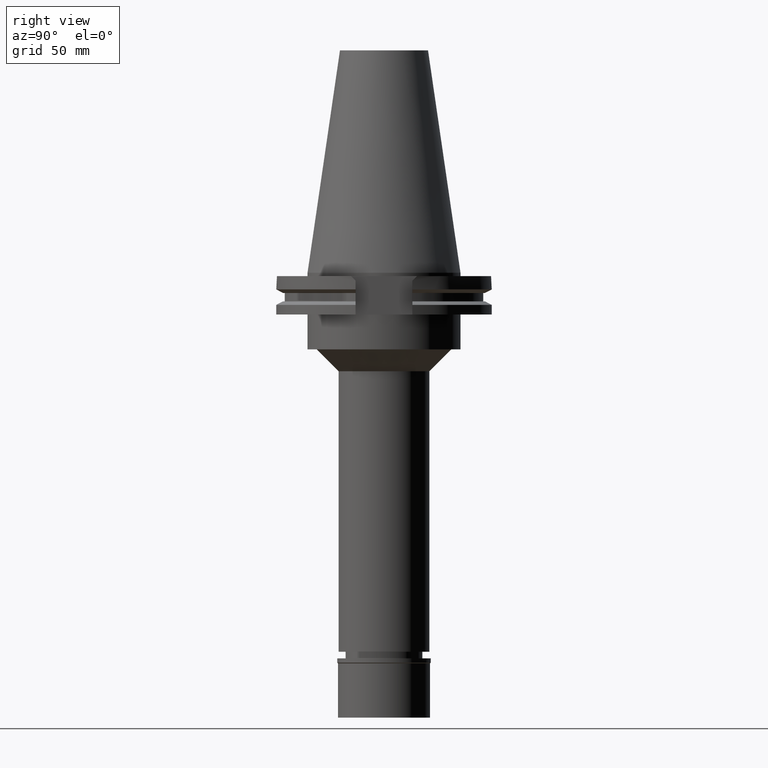
[diagram: clean part render]
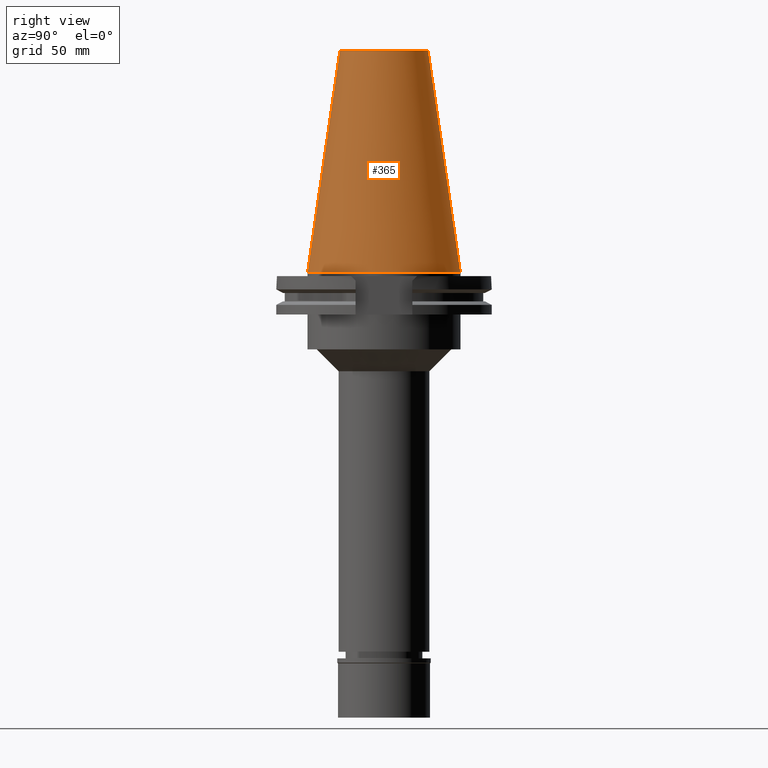
[diagram: same view with one face highlighted and labeled with its STEP entity id]
A machine part, right view. The second image highlights one B-rep face of the part: STEP entity #365.
In plain terms, the highlighted conical surface has half-angle 8.297 deg.
Its self-contained STEP definition (entity closure, byte-faithful):
#14 = CARTESIAN_POINT ( 'NONE',  ( 0.0000000000000000000, 20.10832422387000307, 101.5999999999999943 ) ) ;
#145 = CARTESIAN_POINT ( 'NONE',  ( 0.0000000000000000000, 1.846767373113999857E-14, 50.79999999999999716 ) ) ;
#223 = CARTESIAN_POINT ( 'NONE',  ( 0.0000000000000000000, 1.846767373113999857E-14, 101.5999999999999943 ) ) ;
#279 = EDGE_CURVE ( 'NONE', #2280, #2033, #2175, .T. ) ;
#329 = VECTOR ( 'NONE', #1509, 1000.000000000000114 ) ;
#365 = ADVANCED_FACE ( 'NONE', ( #2960 ), #676, .T. ) ;
#493 = AXIS2_PLACEMENT_3D ( 'NONE', #223, #2522, #2735 ) ;
#589 = VERTEX_POINT ( 'NONE', #1286 ) ;
#642 = DIRECTION ( 'NONE',  ( 0.0000000000000000000, -0.1443069799456937474, -0.9895329683941577192 ) ) ;
#676 = CONICAL_SURFACE ( 'NONE', #1637, 27.51666211194000056, 0.1448125860318199565 ) ;
#1168 = AXIS2_PLACEMENT_3D ( 'NONE', #2330, #2297, #2569 ) ;
#1286 = CARTESIAN_POINT ( 'NONE',  ( 0.0000000000000000000, 34.92499999999999716, 4.689582056016999490E-13 ) ) ;
#1344 = VERTEX_POINT ( 'NONE', #1413 ) ;
#1413 = CARTESIAN_POINT ( 'NONE',  ( 0.0000000000000000000, 20.10832422388000040, 101.5999999999999943 ) ) ;
#1475 = LINE ( 'NONE', #14, #329 ) ;
#1484 = VECTOR ( 'NONE', #642, 1000.000000000000114 ) ;
#1509 = DIRECTION ( 'NONE',  ( 0.0000000000000000000, 0.1443069799456937474, -0.9895329683941577192 ) ) ;
#1522 = EDGE_CURVE ( 'NONE', #589, #2033, #2304, .T. ) ;
#1637 = AXIS2_PLACEMENT_3D ( 'NONE', #145, #2159, #2433 ) ;
#1643 = CARTESIAN_POINT ( 'NONE',  ( 0.0000000000000000000, -20.10832422387000307, 101.5999999999999943 ) ) ;
#2033 = VERTEX_POINT ( 'NONE', #3290 ) ;
#2140 = ORIENTED_EDGE ( 'NONE', *, *, #279, .T. ) ;
#2159 = DIRECTION ( 'NONE',  ( 0.0000000000000000000, 0.0000000000000000000, -1.000000000000000000 ) ) ;
#2173 = EDGE_CURVE ( 'NONE', #1344, #589, #1475, .T. ) ;
#2175 = LINE ( 'NONE', #1643, #1484 ) ;
#2280 = VERTEX_POINT ( 'NONE', #2454 ) ;
#2297 = DIRECTION ( 'NONE',  ( 0.0000000000000000000, 0.0000000000000000000, -1.000000000000000000 ) ) ;
#2304 = CIRCLE ( 'NONE', #1168, 34.92499999999999716 ) ;
#2330 = CARTESIAN_POINT ( 'NONE',  ( 0.0000000000000000000, 1.846767373113999857E-14, 8.242295734816999588E-13 ) ) ;
#2433 = DIRECTION ( 'NONE',  ( 0.0000000000000000000, -1.000000000000000000, 0.0000000000000000000 ) ) ;
#2454 = CARTESIAN_POINT ( 'NONE',  ( 0.0000000000000000000, -20.10832422388000040, 101.5999999999999943 ) ) ;
#2492 = EDGE_CURVE ( 'NONE', #1344, #2280, #2805, .T. ) ;
#2522 = DIRECTION ( 'NONE',  ( 0.0000000000000000000, 0.0000000000000000000, -1.000000000000000000 ) ) ;
#2532 = EDGE_LOOP ( 'NONE', ( #2979, #2140, #2894, #2890 ) ) ;
#2569 = DIRECTION ( 'NONE',  ( 0.0000000000000000000, 1.000000000000000000, 0.0000000000000000000 ) ) ;
#2735 = DIRECTION ( 'NONE',  ( 0.0000000000000000000, 1.000000000000000000, 0.0000000000000000000 ) ) ;
#2805 = CIRCLE ( 'NONE', #493, 20.10832422388000040 ) ;
#2890 = ORIENTED_EDGE ( 'NONE', *, *, #2173, .F. ) ;
#2894 = ORIENTED_EDGE ( 'NONE', *, *, #1522, .F. ) ;
#2960 = FACE_OUTER_BOUND ( 'NONE', #2532, .T. ) ;
#2979 = ORIENTED_EDGE ( 'NONE', *, *, #2492, .T. ) ;
#3290 = CARTESIAN_POINT ( 'NONE',  ( 0.0000000000000000000, -34.92499999999999716, 4.689582056016999490E-13 ) ) ;